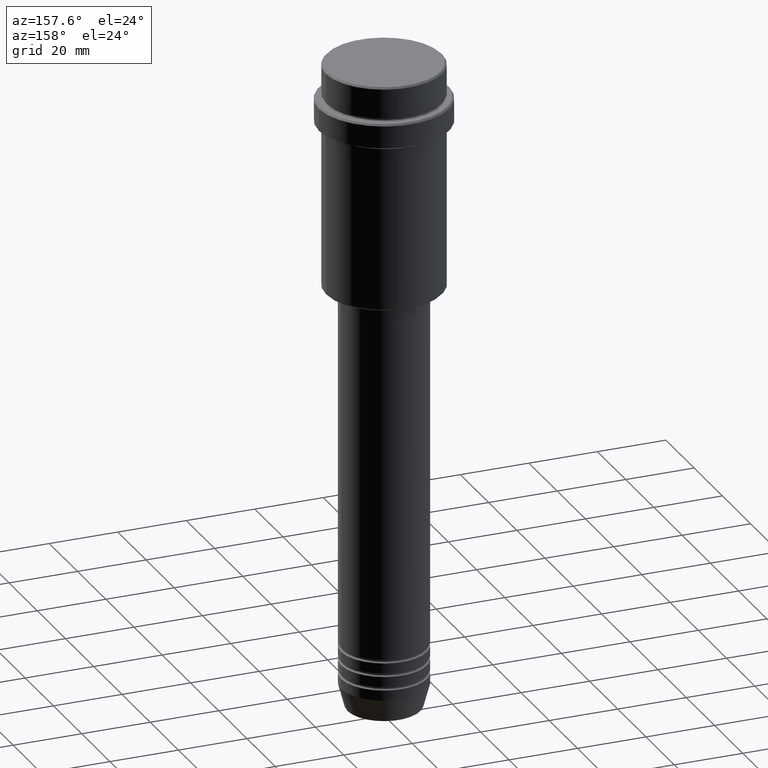
[diagram: clean part render]
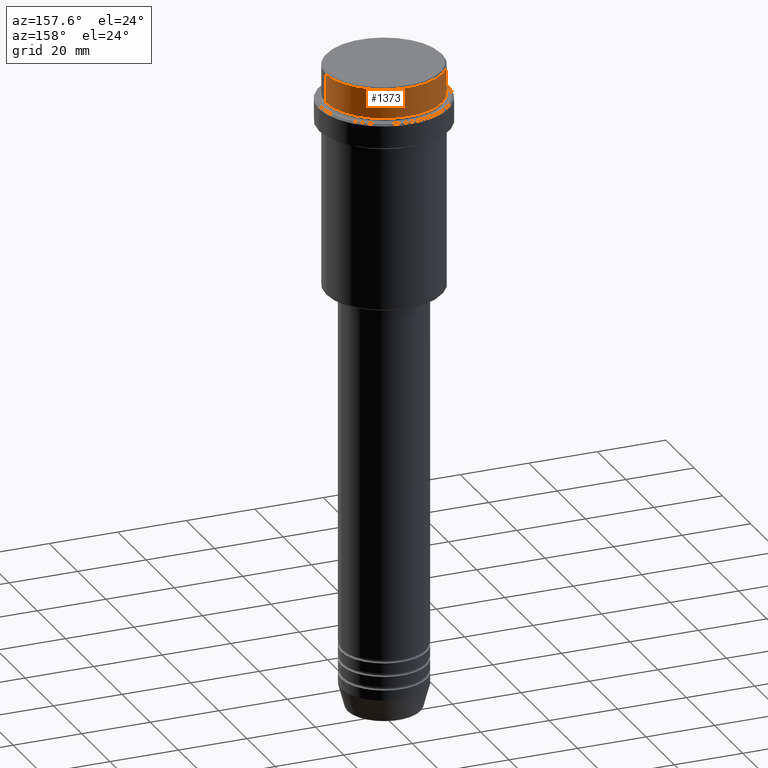
[diagram: same view with one face highlighted and labeled with its STEP entity id]
A machine part, auxiliary view. The second image highlights one B-rep face of the part: STEP entity #1373.
In plain terms, the highlighted cylindrical surface (partial cylindrical patch) has radius 17 mm, axis along (-0, -0, 1).
Its self-contained STEP definition (entity closure, byte-faithful):
#76 = LINE ( 'NONE', #866, #324 ) ;
#79 = LINE ( 'NONE', #613, #392 ) ;
#102 = DIRECTION ( 'NONE',  ( 1.000000000000000000, 0.000000000000000000, 0.000000000000000000 ) ) ;
#104 = EDGE_CURVE ( 'NONE', #423, #977, #504, .T. ) ;
#116 = CARTESIAN_POINT ( 'NONE',  ( -16.99999999999997868, 2.081899558550498702E-15, -8.999999999999998224 ) ) ;
#121 = VERTEX_POINT ( 'NONE', #478 ) ;
#150 = AXIS2_PLACEMENT_3D ( 'NONE', #804, #597, #159 ) ;
#159 = DIRECTION ( 'NONE',  ( 1.000000000000000000, 0.000000000000000000, 0.000000000000000000 ) ) ;
#270 = FACE_OUTER_BOUND ( 'NONE', #1292, .T. ) ;
#273 = EDGE_CURVE ( 'NONE', #977, #121, #76, .T. ) ;
#294 = EDGE_CURVE ( 'NONE', #423, #387, #79, .T. ) ;
#305 = DIRECTION ( 'NONE',  ( 0.000000000000000000, 0.000000000000000000, -1.000000000000000000 ) ) ;
#324 = VECTOR ( 'NONE', #956, 1000.000000000000000 ) ;
#375 = DIRECTION ( 'NONE',  ( -0.000000000000000000, -0.000000000000000000, 1.000000000000000000 ) ) ;
#387 = VERTEX_POINT ( 'NONE', #577 ) ;
#392 = VECTOR ( 'NONE', #1158, 1000.000000000000000 ) ;
#423 = VERTEX_POINT ( 'NONE', #433 ) ;
#433 = CARTESIAN_POINT ( 'NONE',  ( 16.99999999999997868, 0.000000000000000000, -8.999999999999998224 ) ) ;
#478 = CARTESIAN_POINT ( 'NONE',  ( -16.99999999999998934, 2.081899558550499491E-15, -0.4999999999999865663 ) ) ;
#504 = CIRCLE ( 'NONE', #150, 16.99999999999997868 ) ;
#512 = DIRECTION ( 'NONE',  ( 1.000000000000000000, 0.000000000000000000, 0.000000000000000000 ) ) ;
#577 = CARTESIAN_POINT ( 'NONE',  ( 16.99999999999998934, 0.000000000000000000, -0.4999999999999865663 ) ) ;
#597 = DIRECTION ( 'NONE',  ( -0.000000000000000000, -0.000000000000000000, 1.000000000000000000 ) ) ;
#599 = CIRCLE ( 'NONE', #1297, 16.99999999999998934 ) ;
#613 = CARTESIAN_POINT ( 'NONE',  ( 16.99999999999998934, 0.000000000000000000, 0.000000000000000000 ) ) ;
#732 = CARTESIAN_POINT ( 'NONE',  ( 0.000000000000000000, 0.000000000000000000, 0.000000000000000000 ) ) ;
#804 = CARTESIAN_POINT ( 'NONE',  ( 0.000000000000000000, 0.000000000000000000, -8.999999999999998224 ) ) ;
#848 = ORIENTED_EDGE ( 'NONE', *, *, #104, .T. ) ;
#866 = CARTESIAN_POINT ( 'NONE',  ( -16.99999999999998934, 2.081899558550499491E-15, 0.000000000000000000 ) ) ;
#913 = EDGE_CURVE ( 'NONE', #121, #387, #599, .T. ) ;
#955 = CYLINDRICAL_SURFACE ( 'NONE', #962, 16.99999999999998934 ) ;
#956 = DIRECTION ( 'NONE',  ( -0.000000000000000000, -0.000000000000000000, 1.000000000000000000 ) ) ;
#962 = AXIS2_PLACEMENT_3D ( 'NONE', #732, #375, #512 ) ;
#977 = VERTEX_POINT ( 'NONE', #116 ) ;
#1022 = ORIENTED_EDGE ( 'NONE', *, *, #273, .T. ) ;
#1158 = DIRECTION ( 'NONE',  ( -0.000000000000000000, -0.000000000000000000, 1.000000000000000000 ) ) ;
#1208 = ORIENTED_EDGE ( 'NONE', *, *, #913, .T. ) ;
#1292 = EDGE_LOOP ( 'NONE', ( #848, #1022, #1208, #1301 ) ) ;
#1297 = AXIS2_PLACEMENT_3D ( 'NONE', #1306, #305, #102 ) ;
#1301 = ORIENTED_EDGE ( 'NONE', *, *, #294, .F. ) ;
#1306 = CARTESIAN_POINT ( 'NONE',  ( 0.000000000000000000, 0.000000000000000000, -0.4999999999999865663 ) ) ;
#1373 = ADVANCED_FACE ( 'NONE', ( #270 ), #955, .T. ) ;